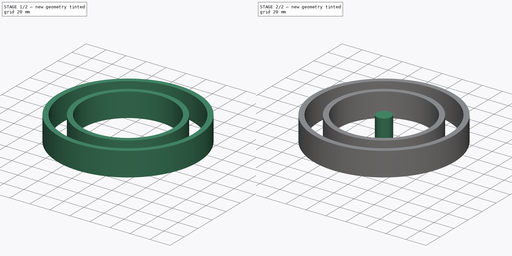
[diagram: build sequence overview — one tinted view per stage of 2, left to right]
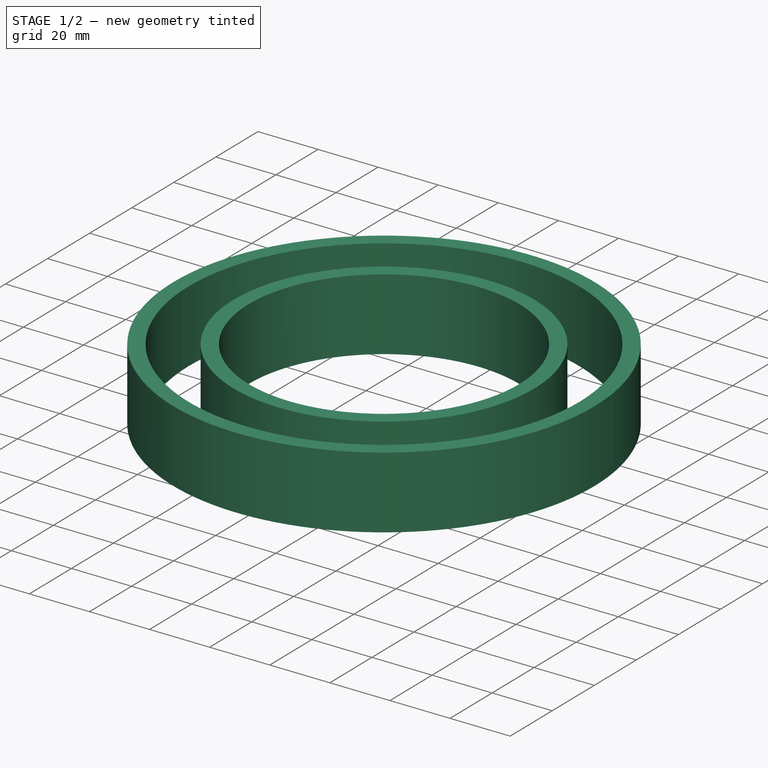
[diagram: stage 1 of 2 — iso view after this stage's code; geometry added in this stage tinted green]
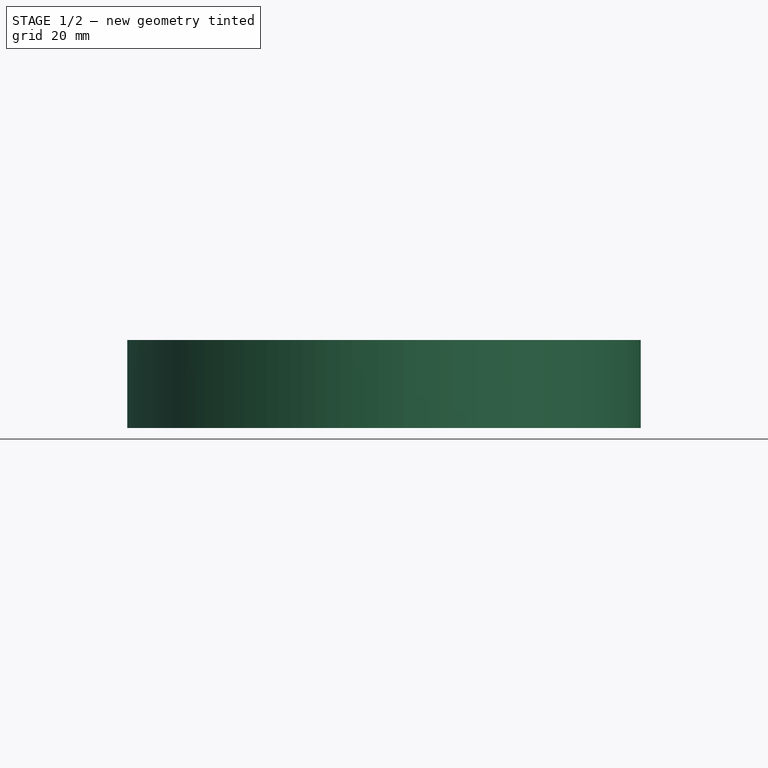
[diagram: stage 1 of 2 — front view after this stage's code; geometry added in this stage tinted green]
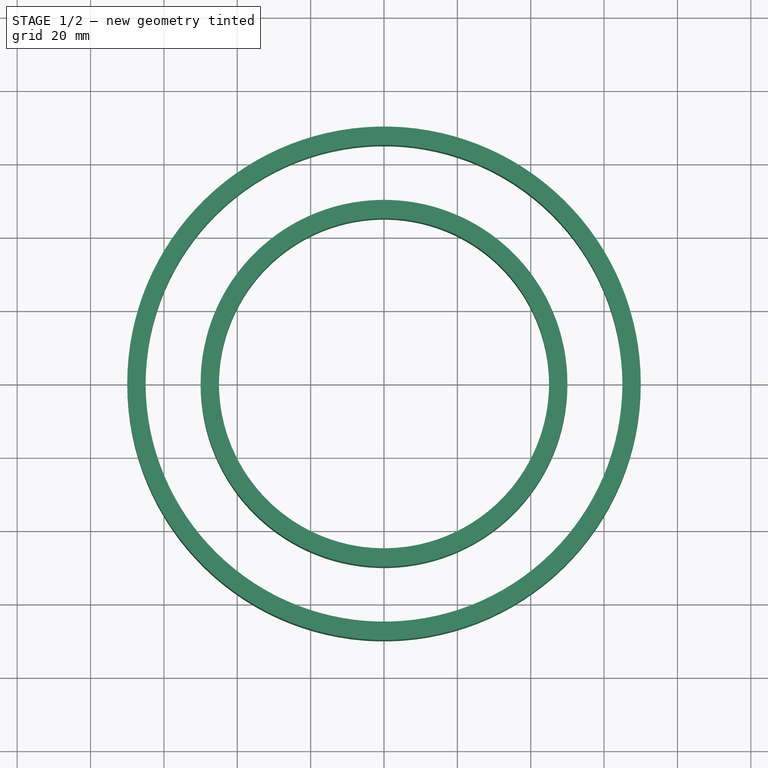
[diagram: stage 1 of 2 — top view after this stage's code; geometry added in this stage tinted green]
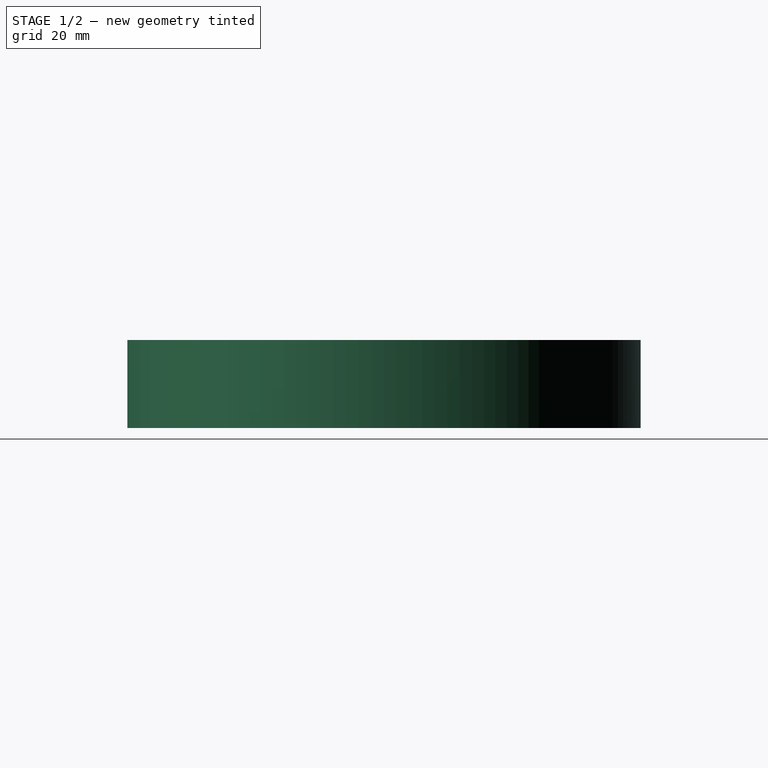
[diagram: stage 1 of 2 — right view after this stage's code; geometry added in this stage tinted green]
FCSTD DOCUMENT  (FreeCAD 0.19R24276 (Git))
Label: Assambly_bearing_90x140x24
License: All rights reserved
LicenseURL: http://en.wikipedia.org/wiki/All_rights_reserved
objects: PartDesign::CoordinateSystem×16, App::Link×14, Sketcher::SketchObject×4, App::DocumentObjectGroup×3, PartDesign::Pad×3, PartDesign::Body×3, App::FeaturePython×1, App::Part×1
note: 29 computed .brp shape members not serialized (recipe doc carries the construction recipe); baked Part::Feature solids carry a one-line shape summary decoded from their .brp

FEATURE [PartDesign::CoordinateSystem] LCS_Origin
  AttacherType = Attacher::AttachEngine3D
  MapMode = 2
  Support = -> [X_Axis]
FEATURE [App::FeaturePython] Variables  # WARN: FeaturePython — macro-defined, semantics opaque (R4)
  Type = App::PropertyContainer
FEATURE [App::DocumentObjectGroup] Configurations
FEATURE [Sketcher::SketchObject] Sketch
  FullyConstrained = true
  MapMode = 5
  Support = -> [XY_Plane001]
  sketch-geometry (2):
    g0: Circle CenterX=0 CenterY=0 CenterZ=0 NormalX=0 NormalY=0 NormalZ=1 AngleXU=0 Radius=50
    g1: Circle CenterX=0 CenterY=0 CenterZ=0 NormalX=0 NormalY=0 NormalZ=1 AngleXU=0 Radius=45
  constraints (4):
    c: Coincident(g1,g0)
    c: Diameter(g1) = 90
    c: Diameter(g0) = 100
    c: Coincident(g0,g-1)
FEATURE [PartDesign::Pad] Pad
  Direction = (1,1,1)
  Length = 24
  Length2 = 100
  Profile = -> Sketch
  Type = 0
FEATURE [Sketcher::SketchObject] Sketch003
  FullyConstrained = false
  MapMode = 5
  Support = -> [XY_Plane]
  sketch-geometry (29):
    g0: Circle CenterX=0 CenterY=0 CenterZ=0 NormalX=0 NormalY=0 NormalZ=1 AngleXU=0 Radius=50
    g1: Circle CenterX=0 CenterY=0 CenterZ=0 NormalX=0 NormalY=0 NormalZ=1 AngleXU=0 Radius=65
    g2: Circle CenterX=0 CenterY=0 CenterZ=0 NormalX=0 NormalY=0 NormalZ=1 AngleXU=0 Radius=45
    g3: Circle CenterX=0 CenterY=0 CenterZ=0 NormalX=0 NormalY=0 NormalZ=1 AngleXU=0 Radius=70
    g4: Circle CenterX=0 CenterY=0 CenterZ=0 NormalX=0 NormalY=0 NormalZ=1 AngleXU=0 Radius=57.5
    g5: LineSegment StartX=0 StartY=0 StartZ=0 EndX=57.4929 EndY=0 EndZ=0
    g6: LineSegment StartX=0 StartY=0 StartZ=0 EndX=49.7965 EndY=28.75 EndZ=0
    g7: Circle CenterX=49.7965 CenterY=28.75 CenterZ=0 NormalX=0 NormalY=0 NormalZ=1 AngleXU=0 Radius=7.5
    g8: Circle CenterX=57.4929 CenterY=0 CenterZ=0 NormalX=0 NormalY=0 NormalZ=1 AngleXU=0 Radius=7.5
    g9: LineSegment StartX=0 StartY=0 StartZ=0 EndX=28.75 EndY=49.7965 EndZ=0
    g10: Circle CenterX=28.75 CenterY=49.7965 CenterZ=0 NormalX=0 NormalY=0 NormalZ=1 AngleXU=0 Radius=7.5
    g11: LineSegment StartX=0 StartY=0 StartZ=0 EndX=-9.55214e-09 EndY=57.5 EndZ=0
    g12: LineSegment StartX=0 StartY=0 StartZ=0 EndX=-28.75 EndY=49.7965 EndZ=0
    g13: LineSegment StartX=0 StartY=0 StartZ=0 EndX=-49.7965 EndY=28.75 EndZ=0
    g14: LineSegment StartX=0 StartY=0 StartZ=0 EndX=-57.5 EndY=-1.87e-14 EndZ=0
    g15: Circle CenterX=-9.55214e-09 CenterY=57.5 CenterZ=0 NormalX=0 NormalY=0 NormalZ=1 AngleXU=0 Radius=7.5
    g16: Circle CenterX=-49.7965 CenterY=28.75 CenterZ=0 NormalX=0 NormalY=0 NormalZ=1 AngleXU=0 Radius=7.5
    g17: Circle CenterX=-57.5 CenterY=-1.87e-14 CenterZ=0 NormalX=0 NormalY=0 NormalZ=1 AngleXU=0 Radius=7.5
    g18: Circle CenterX=-28.75 CenterY=49.7965 CenterZ=0 NormalX=0 NormalY=0 NormalZ=1 AngleXU=0 Radius=7.5
    g19: LineSegment StartX=0 StartY=0 StartZ=0 EndX=-49.7965 EndY=-28.75 EndZ=0
    g20: LineSegment StartX=0 StartY=0 StartZ=0 EndX=-28.75 EndY=-49.7965 EndZ=0
    g21: LineSegment StartX=-0.0684133 StartY=-5.1113e-08 StartZ=0 EndX=-0.0684133 EndY=-57.5 EndZ=0
    g22: LineSegment StartX=0 StartY=0 StartZ=0 EndX=28.75 EndY=-49.7965 EndZ=0
    g23: LineSegment StartX=0 StartY=0 StartZ=0 EndX=49.7965 EndY=-28.75 EndZ=0
    g24: Circle CenterX=-49.7965 CenterY=-28.75 CenterZ=0 NormalX=0 NormalY=0 NormalZ=1 AngleXU=0 Radius=7.5
    g25: Circle CenterX=-28.75 CenterY=-49.7965 CenterZ=0 NormalX=0 NormalY=0 NormalZ=1 AngleXU=0 Radius=7.5
    g26: Circle CenterX=-0.0684133 CenterY=-57.5 CenterZ=0 NormalX=0 NormalY=0 NormalZ=1 AngleXU=0 Radius=7.5
    g27: Circle CenterX=28.75 CenterY=-49.7965 CenterZ=0 NormalX=0 NormalY=0 NormalZ=1 AngleXU=0 Radius=7.5
    g28: Circle CenterX=49.7965 CenterY=-28.75 CenterZ=0 NormalX=0 NormalY=0 NormalZ=1 AngleXU=0 Radius=7.5
  constraints (62):
    c: Coincident(g0,g-1)
    c: Coincident(g1,g0)
    c: Coincident(g2,g0)
    c: Coincident(g3,g0)
    c: Diameter(g2) = 90
    c: Diameter(g0) = 100
    c: Diameter(g1) = 130
    c: Diameter(g3) = 140
    c: Coincident(g4,g0)
    c: Diameter(g4) = 115
    c: Coincident(g5,g0)
    c: Coincident(g6,g0)
    c: Coincident(g7,g6)
    c: Diameter(g7) = 15
    c: Coincident(g8,g5)
    c: Equal(g7,g8)
    c: Coincident(g9,g0)
    c: Coincident(g10,g9)
    c: Equal(g10,g7)
    c: Angle(g5,g6) = 0.523599
    c: Angle(g5,g9) = 1.0472
    c: Coincident(g11,g0)
    c: Coincident(g12,g0)
    c: Coincident(g13,g0)
    c: Coincident(g14,g0)
    c: Angle(g-1,g12) = 2.0944
    c: Angle(g-1,g13) = 2.61799
    c: Angle(g14,g-1) = 3.14159
    c: PointOnObject(g11,g4)
    c: Coincident(g15,g11)
    c: Coincident(g16,g13)
    c: Coincident(g17,g14)
    c: Coincident(g18,g12)
    c: Equal(g18,g10)
    c: Equal(g10,g15)
    c: Equal(g15,g16)
    c: Equal(g16,g17)
    c: Coincident(g19,g0)
    c: Coincident(g20,g0)
    c: Coincident(g22,g0)
    c: Coincident(g23,g0)
    c: Angle(g23,g-1) = 0.523599
    c: Horizontal(g5)
    c: PointOnObject(g23,g4)
    c: PointOnObject(g22,g4)
    c: PointOnObject(g21,g4)
    c: PointOnObject(g20,g4)
    c: PointOnObject(g19,g4)
    c: Angle(g22,g5) = 1.0472
    c: Perpendicular(g5,g21)
    c: Angle(g20,g21) = 0.523599
    c: Angle(g14,g19) = 0.523599
    c: Coincident(g24,g19)
    c: Coincident(g25,g20)
    c: Coincident(g26,g21)
    c: Coincident(g27,g22)
    c: Coincident(g28,g23)
    c: Equal(g26,g27)
    c: Equal(g27,g28)
    c: Equal(g28,g25)
    c: Equal(g25,g24)
    c: Equal(g24,g8)
FEATURE [App::DocumentObjectGroup] Constraints
  Group = -> [Sketch003]
FEATURE [PartDesign::CoordinateSystem] LCS_R1
  AttacherType = Attacher::AttachEngine3D
  MapMode = 5
  Placement = pos=(0,0,24) rot=(0,0,1;0rad)
  Support = -> [Pad002]
FEATURE [PartDesign::Body] Body002  label="Body_roller"
  Group = -> [Sketch002,Pad002,LCS_R1]
  Origin = -> Origin003
  Tip = -> Pad002
FEATURE [PartDesign::CoordinateSystem] LCS_sk_1
  AttacherType = Attacher::AttachEngine3D
  MapMode = 1
  Placement = pos=(-9.55214e-09,57.5,0) rot=(0,0,1;0rad)
  Support = -> [Sketch003]
FEATURE [App::Link] Body_roller001  label="Body_roller002"
  AttachedBy = #LCS_R1
  AttachedTo = Parent Assembly#LCS_sk_1
  LinkPlacement = pos=(-9.55214e-09,57.5,-24) rot=(0,0,1;0rad)
  LinkedObject = -> Body002
  Placement = pos=(-9.55214e-09,57.5,-24) rot=(0,0,1;0rad)
  SolverId = Placement::ExpressionEngine
  expr: Placement = LCS_sk_1.Placement * AttachmentOffset * LCS_R1.Placement ^ -1
FEATURE [PartDesign::CoordinateSystem] LCS_sk2
  AttacherType = Attacher::AttachEngine3D
  MapMode = 1
  Placement = pos=(28.75,49.7965,0) rot=(0,0,1;0rad)
  Support = -> [Sketch003]
FEATURE [App::Link] Body_roller002  label="Body_roller003"
  AttachedBy = #LCS_R1
  AttachedTo = Parent Assembly#LCS_sk2
  LinkPlacement = pos=(28.75,49.7965,-24) rot=(0,0,1;0rad)
  LinkedObject = -> Body002
  Placement = pos=(28.75,49.7965,-24) rot=(0,0,1;0rad)
  SolverId = Placement::ExpressionEngine
  expr: Placement = LCS_sk2.Placement * AttachmentOffset * LCS_R1.Placement ^ -1
FEATURE [PartDesign::CoordinateSystem] LCS_sk3
  AttacherType = Attacher::AttachEngine3D
  MapMode = 1
  Placement = pos=(49.7965,28.75,0) rot=(0,0,1;0rad)
  Support = -> [Sketch003]
FEATURE [App::Link] Body_roller003  label="Body_roller004"
  AttachedBy = #LCS_R1
  AttachedTo = Parent Assembly#LCS_sk3
  LinkPlacement = pos=(49.7965,28.75,-24) rot=(0,0,1;0rad)
  LinkedObject = -> Body002
  Placement = pos=(49.7965,28.75,-24) rot=(0,0,1;0rad)
  SolverId = Placement::ExpressionEngine
  expr: Placement = LCS_sk3.Placement * AttachmentOffset * LCS_R1.Placement ^ -1
FEATURE [PartDesign::CoordinateSystem] LCS_sk4
  AttacherType = Attacher::AttachEngine3D
  MapMode = 1
  Placement = pos=(57.5,0,0) rot=(0,0,1;0rad)
  Support = -> [Sketch003]
FEATURE [App::Link] Body_roller004  label="Body_roller005"
  AttachedBy = #LCS_R1
  AttachedTo = Parent Assembly#LCS_sk4
  LinkPlacement = pos=(57.5,0,-24) rot=(0,0,1;0rad)
  LinkedObject = -> Body002
  Placement = pos=(57.5,0,-24) rot=(0,0,1;0rad)
  SolverId = Placement::ExpressionEngine
  expr: Placement = LCS_sk4.Placement * AttachmentOffset * LCS_R1.Placement ^ -1
FEATURE [PartDesign::CoordinateSystem] LCS_sk5
  AttacherType = Attacher::AttachEngine3D
  MapMode = 1
  Placement = pos=(49.7965,-28.75,0) rot=(0,0,1;0rad)
  Support = -> [Sketch003]
FEATURE [PartDesign::CoordinateSystem] LCS_sk6
  AttacherType = Attacher::AttachEngine3D
  MapMode = 1
  Placement = pos=(28.75,-49.7965,0) rot=(0,0,1;0rad)
  Support = -> [Sketch003]
FEATURE [PartDesign::CoordinateSystem] LCS_sk7
  AttacherType = Attacher::AttachEngine3D
  MapMode = 1
  Placement = pos=(-0.0684133,-57.5,0) rot=(0,0,1;0rad)
  Support = -> [Sketch003]
FEATURE [PartDesign::CoordinateSystem] LCS_sk8
  AttacherType = Attacher::AttachEngine3D
  MapMode = 1
  Placement = pos=(-28.75,-49.7965,0) rot=(0,0,1;0rad)
  Support = -> [Sketch003]
FEATURE [PartDesign::CoordinateSystem] LCS_sk9
  AttacherType = Attacher::AttachEngine3D
  MapMode = 1
  Placement = pos=(-49.7965,-28.75,0) rot=(0,0,1;0rad)
  Support = -> [Sketch003]
FEATURE [PartDesign::CoordinateSystem] LCS_sk10
  AttacherType = Attacher::AttachEngine3D
  MapMode = 1
  Placement = pos=(-57.5,-1.87e-14,0) rot=(0,0,1;0rad)
  Support = -> [Sketch003]
FEATURE [PartDesign::CoordinateSystem] LCS_sk11
  AttacherType = Attacher::AttachEngine3D
  MapMode = 1
  Placement = pos=(-49.7965,28.75,0) rot=(0,0,1;0rad)
  Support = -> [Sketch003]
FEATURE [PartDesign::CoordinateSystem] LCS_sk12
  AttacherType = Attacher::AttachEngine3D
  MapMode = 1
  Placement = pos=(-28.75,49.7965,0) rot=(0,0,1;0rad)
  Support = -> [Sketch003]
FEATURE [App::Link] Body_roller005  label="Body_roller006"
  AttachedBy = #LCS_R1
  AttachedTo = Parent Assembly#LCS_sk5
  LinkPlacement = pos=(49.7965,-28.75,-24) rot=(0,0,1;0rad)
  LinkedObject = -> Body002
  Placement = pos=(49.7965,-28.75,-24) rot=(0,0,1;0rad)
  SolverId = Placement::ExpressionEngine
  expr: Placement = LCS_sk5.Placement * AttachmentOffset * LCS_R1.Placement ^ -1
FEATURE [App::Link] Body_roller006  label="Body_roller007"
  AttachedBy = #LCS_R1
  AttachedTo = Parent Assembly#LCS_sk6
  LinkPlacement = pos=(28.75,-49.7965,-24) rot=(0,0,1;0rad)
  LinkedObject = -> Body002
  Placement = pos=(28.75,-49.7965,-24) rot=(0,0,1;0rad)
  SolverId = Placement::ExpressionEngine
  expr: Placement = LCS_sk6.Placement * AttachmentOffset * LCS_R1.Placement ^ -1
FEATURE [App::Link] Body_roller007  label="Body_roller008"
  AttachedBy = #LCS_R1
  AttachedTo = Parent Assembly#LCS_sk7
  LinkPlacement = pos=(-0.0684133,-57.5,-24) rot=(0,0,1;0rad)
  LinkedObject = -> Body002
  Placement = pos=(-0.0684133,-57.5,-24) rot=(0,0,1;0rad)
  SolverId = Placement::ExpressionEngine
  expr: Placement = LCS_sk7.Placement * AttachmentOffset * LCS_R1.Placement ^ -1
FEATURE [App::Link] Body_roller008  label="Body_roller009"
  AttachedBy = #LCS_R1
  AttachedTo = Parent Assembly#LCS_sk8
  LinkPlacement = pos=(-28.75,-49.7965,-24) rot=(0,0,1;0rad)
  LinkedObject = -> Body002
  Placement = pos=(-28.75,-49.7965,-24) rot=(0,0,1;0rad)
  SolverId = Placement::ExpressionEngine
  expr: Placement = LCS_sk8.Placement * AttachmentOffset * LCS_R1.Placement ^ -1
FEATURE [App::Link] Body_roller009  label="Body_roller010"
  AttachedBy = #LCS_R1
  AttachedTo = Parent Assembly#LCS_sk9
  LinkPlacement = pos=(-49.7965,-28.75,-24) rot=(0,0,1;0rad)
  LinkedObject = -> Body002
  Placement = pos=(-49.7965,-28.75,-24) rot=(0,0,1;0rad)
  SolverId = Placement::ExpressionEngine
  expr: Placement = LCS_sk9.Placement * AttachmentOffset * LCS_R1.Placement ^ -1
FEATURE [App::Link] Body_roller012  label="Body_roller013"
  AttachedBy = #LCS_R1
  AttachedTo = Parent Assembly#LCS_sk10
  LinkPlacement = pos=(-57.5,-1.87e-14,-24) rot=(0,0,1;0rad)
  LinkedObject = -> Body002
  Placement = pos=(-57.5,-1.87e-14,-24) rot=(0,0,1;0rad)
  SolverId = Placement::ExpressionEngine
  expr: Placement = LCS_sk10.Placement * AttachmentOffset * LCS_R1.Placement ^ -1
FEATURE [App::Link] Body_roller013  label="Body_roller014"
  AttachedBy = #LCS_R1
  AttachedTo = Parent Assembly#LCS_sk11
  LinkPlacement = pos=(-49.7965,28.75,-24) rot=(0,0,1;0rad)
  LinkedObject = -> Body002
  Placement = pos=(-49.7965,28.75,-24) rot=(0,0,1;0rad)
  SolverId = Placement::ExpressionEngine
  expr: Placement = LCS_sk11.Placement * AttachmentOffset * LCS_R1.Placement ^ -1
FEATURE [App::Link] Body_roller014  label="Body_roller015"
  AttachedBy = #LCS_R1
  AttachedTo = Parent Assembly#LCS_sk12
  LinkPlacement = pos=(-28.75,49.7965,-24) rot=(0,0,1;0rad)
  LinkedObject = -> Body002
  Placement = pos=(-28.75,49.7965,-24) rot=(0,0,1;0rad)
  SolverId = Placement::ExpressionEngine
  expr: Placement = LCS_sk12.Placement * AttachmentOffset * LCS_R1.Placement ^ -1
FEATURE [PartDesign::CoordinateSystem] LCS_ring_in
  AttacherType = Attacher::AttachEngine3D
  MapMode = 11
  Placement = pos=(0,0,24) rot=(0,0,1;1.5708rad)
  Support = -> [Pad]
FEATURE [PartDesign::Body] Body  label="Body_ring_in"
  Group = -> [Sketch,Pad,LCS_ring_in]
  Origin = -> Origin001
  Tip = -> Pad
FEATURE [Sketcher::SketchObject] Sketch001
  FullyConstrained = true
  MapMode = 5
  Support = -> [XY_Plane002]
  sketch-geometry (2):
    g0: Circle CenterX=0 CenterY=0 CenterZ=0 NormalX=0 NormalY=0 NormalZ=1 AngleXU=0 Radius=65
    g1: Circle CenterX=0 CenterY=0 CenterZ=0 NormalX=0 NormalY=0 NormalZ=1 AngleXU=0 Radius=70
  constraints (4):
    c: Coincident(g1,g0)
    c: Diameter(g1) = 140
    c: Diameter(g0) = 130
    c: Coincident(g0,g-1)
FEATURE [PartDesign::Pad] Pad001
  Direction = (1,1,1)
  Length = 24
  Length2 = 100
  Profile = -> Sketch001
  Type = 0
FEATURE [PartDesign::CoordinateSystem] LCS_ring_out
  AttacherType = Attacher::AttachEngine3D
  MapMode = 11
  Placement = pos=(0,0,24) rot=(0,0,1;1.5708rad)
  Support = -> [Pad001]
FEATURE [PartDesign::Body] Body001  label="Body_ring_out"
  Group = -> [Sketch001,Pad001,LCS_ring_out]
  Origin = -> Origin002
  Tip = -> Pad001
FEATURE [App::DocumentObjectGroup] Parts
  Group = -> [Body,Body001,Body002]
FEATURE [App::Link] Body_ring_out  label="Body_ring_out001"
  AttachedBy = #LCS_ring_out
  AttachedTo = Parent Assembly#LCS_Origin
  LinkPlacement = pos=(0,0,-24) rot=(0,0,-1;1.5708rad)
  LinkedObject = -> Body001
  Placement = pos=(0,0,-24) rot=(0,0,-1;1.5708rad)
  SolverId = Placement::ExpressionEngine
  expr: Placement = LCS_Origin.Placement * AttachmentOffset * LCS_ring_out.Placement ^ -1
FEATURE [App::Link] Body_ring_in  label="Body_ring_in001"
  AttachedBy = #LCS_ring_in
  AttachedTo = Parent Assembly#LCS_Origin
  LinkPlacement = pos=(0,0,-24) rot=(0,0,-1;1.5708rad)
  LinkedObject = -> Body
  Placement = pos=(0,0,-24) rot=(0,0,-1;1.5708rad)
  SolverId = Placement::ExpressionEngine
  expr: Placement = LCS_Origin.Placement * AttachmentOffset * LCS_ring_in.Placement ^ -1
FEATURE [App::Part] Assembly
  AssemblyType = Part::Link
  Group = -> [LCS_Origin,Variables,Constraints,Configurations,Sketch003,LCS_sk_1,Body_roller001,LCS_sk2,Body_roller002,LCS_sk3,Body_roller003,LCS_sk4,Body_roller004,LCS_sk5,LCS_sk6,LCS_sk7,LCS_sk8,LCS_sk9,LCS_sk10,LCS_sk11,LCS_sk12,Body_roller005,Body_roller006,Body_roller007,Body_roller008,Body_roller009,Body_roller012,Body_roller013,Body_roller014,Body_ring_out,Body_ring_in]
  Origin = -> Origin
  Type = Assembly
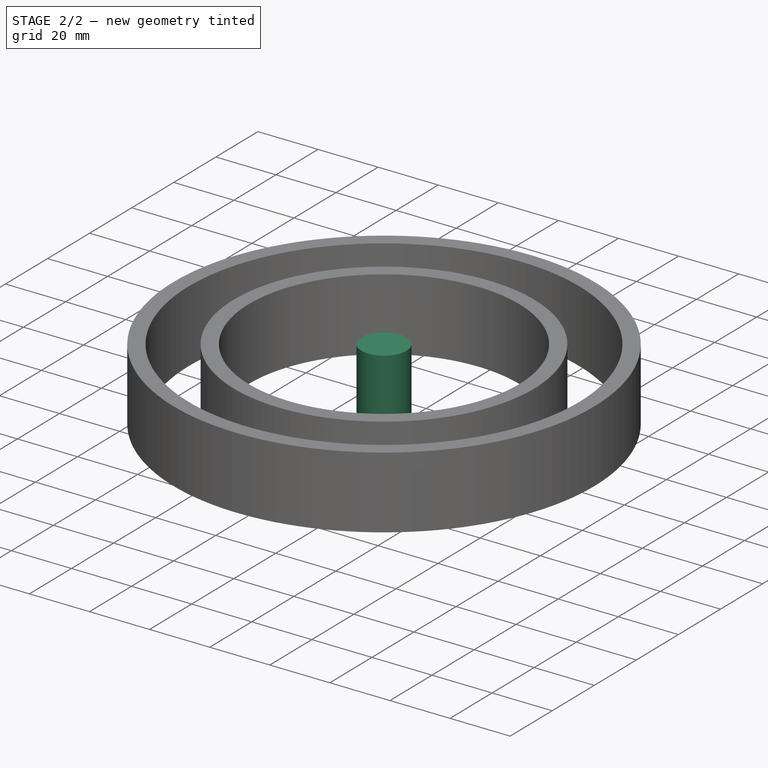
[diagram: stage 2 of 2 — iso view after this stage's code; geometry added in this stage tinted green]
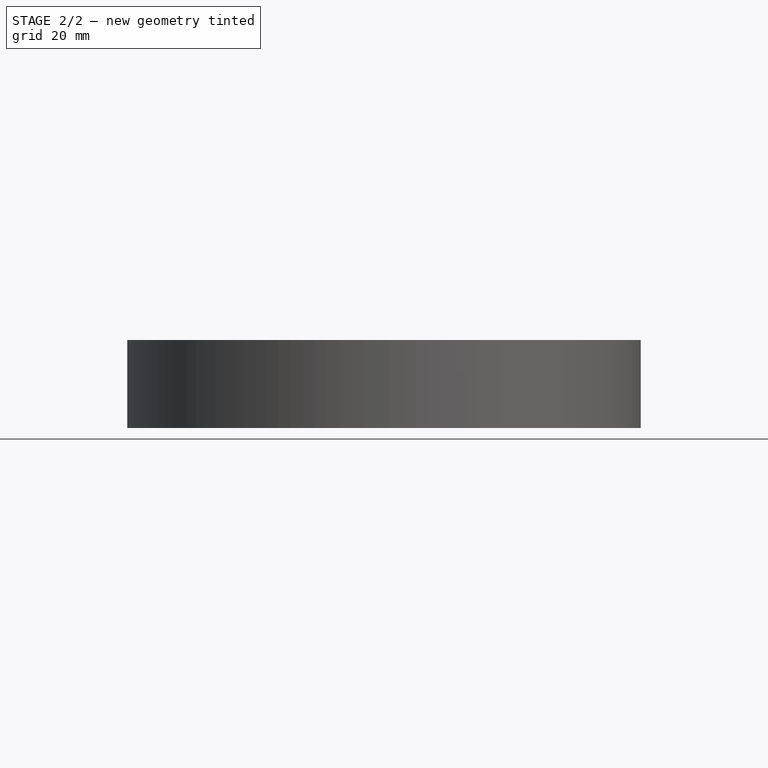
[diagram: stage 2 of 2 — front view after this stage's code; geometry added in this stage tinted green]
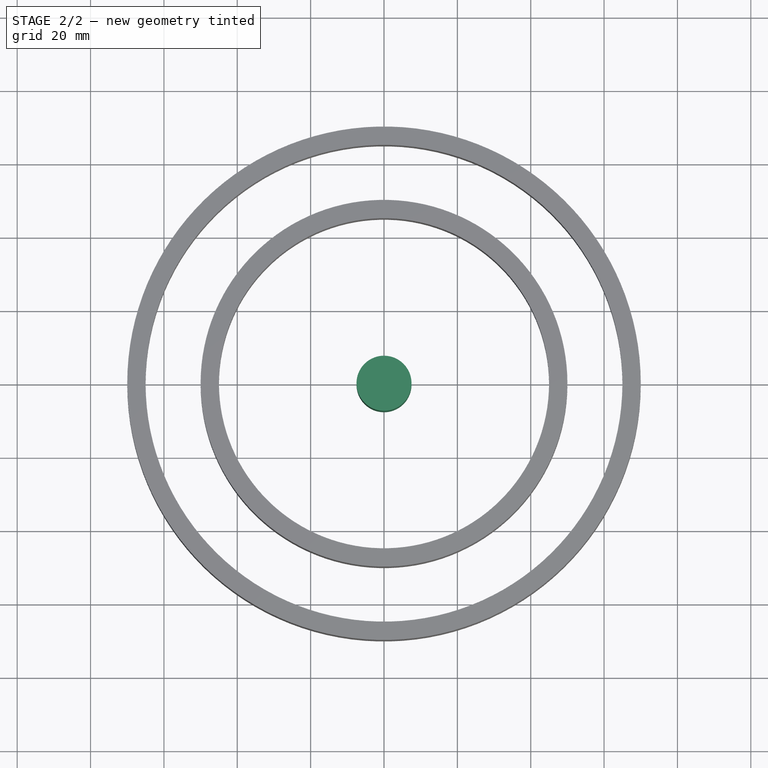
[diagram: stage 2 of 2 — top view after this stage's code; geometry added in this stage tinted green]
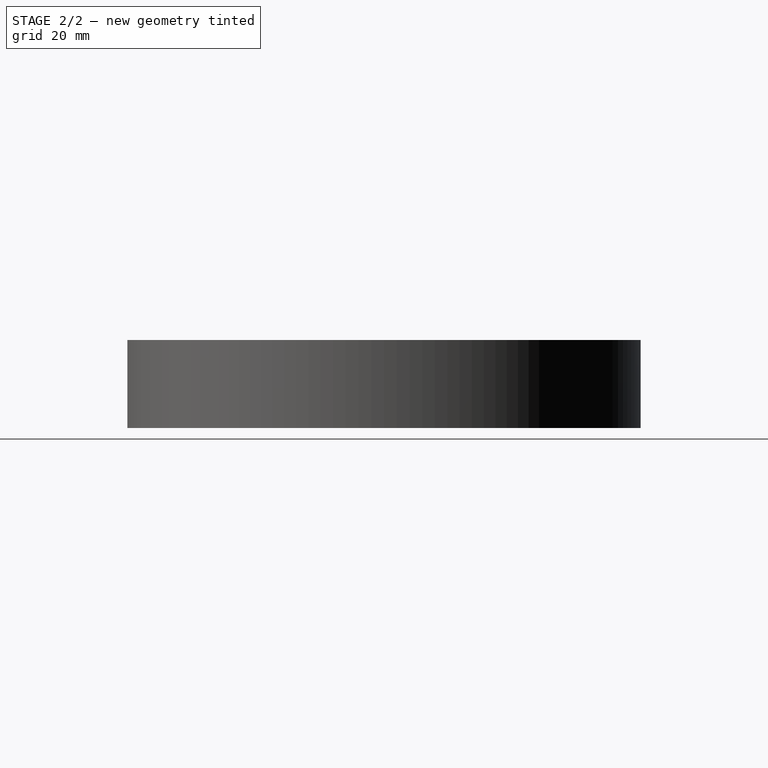
[diagram: stage 2 of 2 — right view after this stage's code; geometry added in this stage tinted green]
FEATURE [Sketcher::SketchObject] Sketch002
  FullyConstrained = true
  MapMode = 5
  Support = -> [XY_Plane003]
  sketch-geometry (1):
    g0: Circle CenterX=0 CenterY=0 CenterZ=0 NormalX=0 NormalY=0 NormalZ=1 AngleXU=0 Radius=7.5
  constraints (2):
    c: Diameter(g0) = 15
    c: Coincident(g0,g-1)
FEATURE [PartDesign::Pad] Pad002
  Direction = (1,1,1)
  Length = 24
  Length2 = 100
  Profile = -> Sketch002
  Type = 0
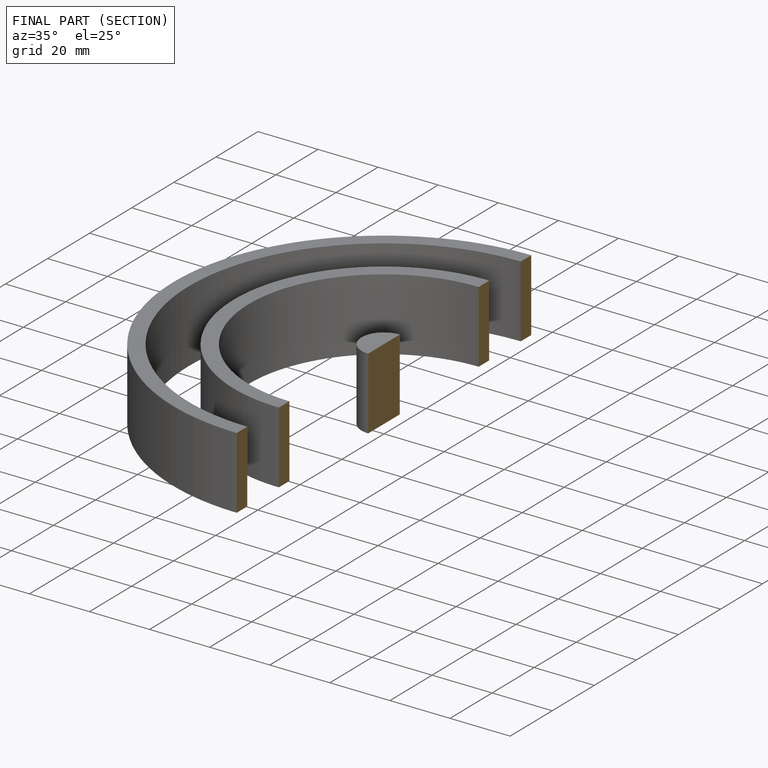
[diagram: finished part — half-section view (interior)]
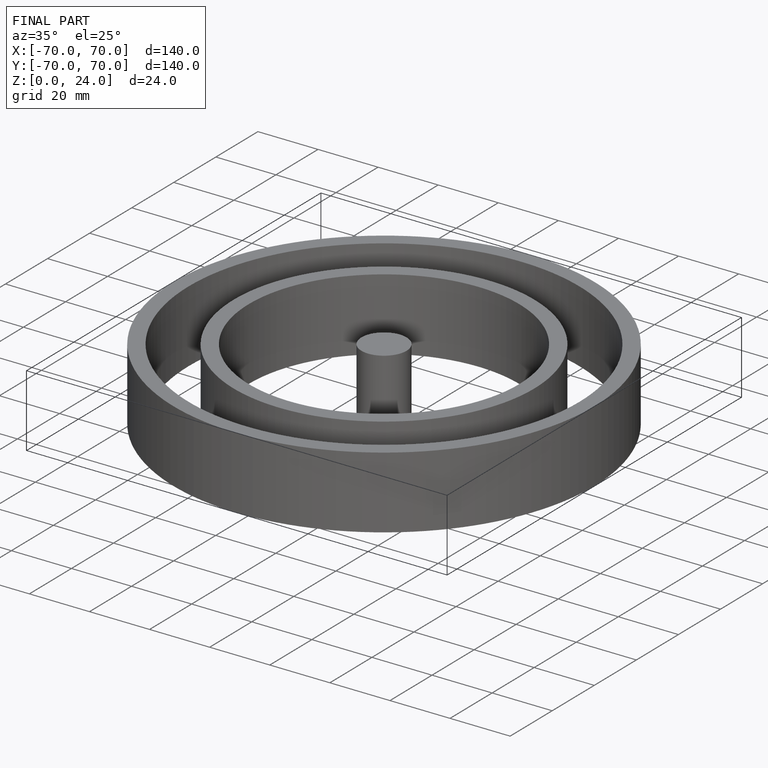
[diagram: finished part — iso view with bounding-box wireframe]
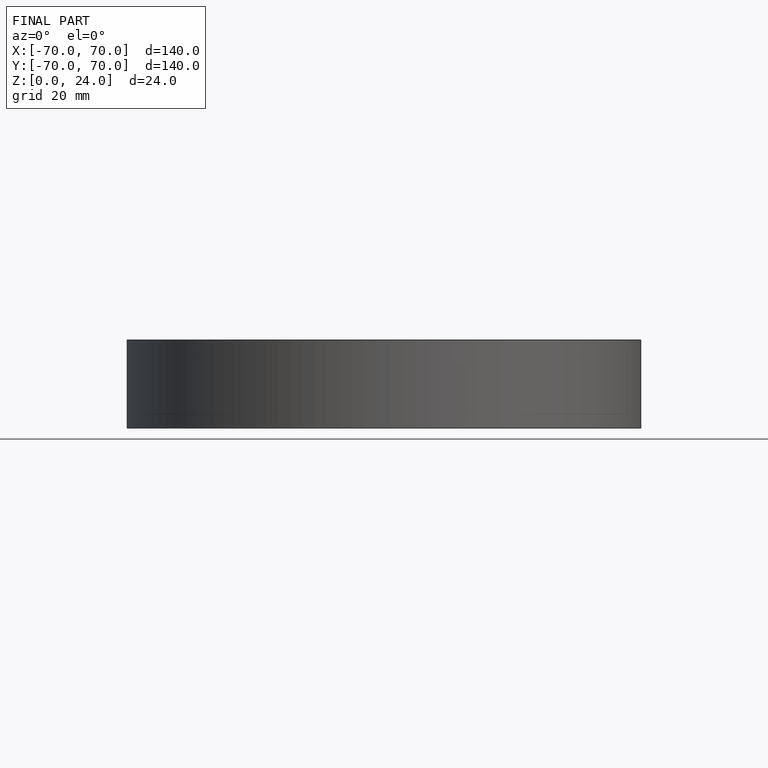
[diagram: finished part — front view with bounding-box wireframe]
